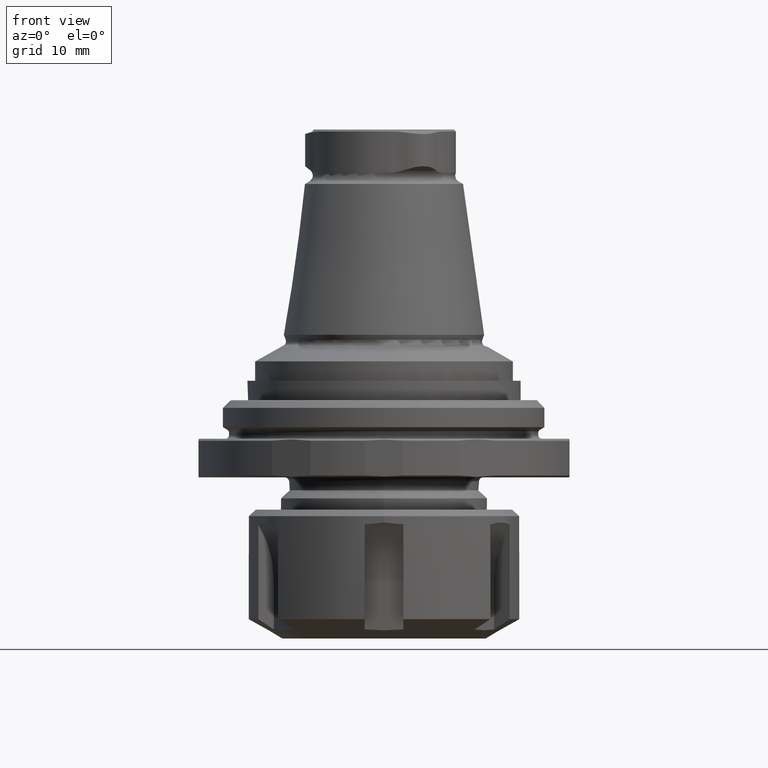
[diagram: clean part render]
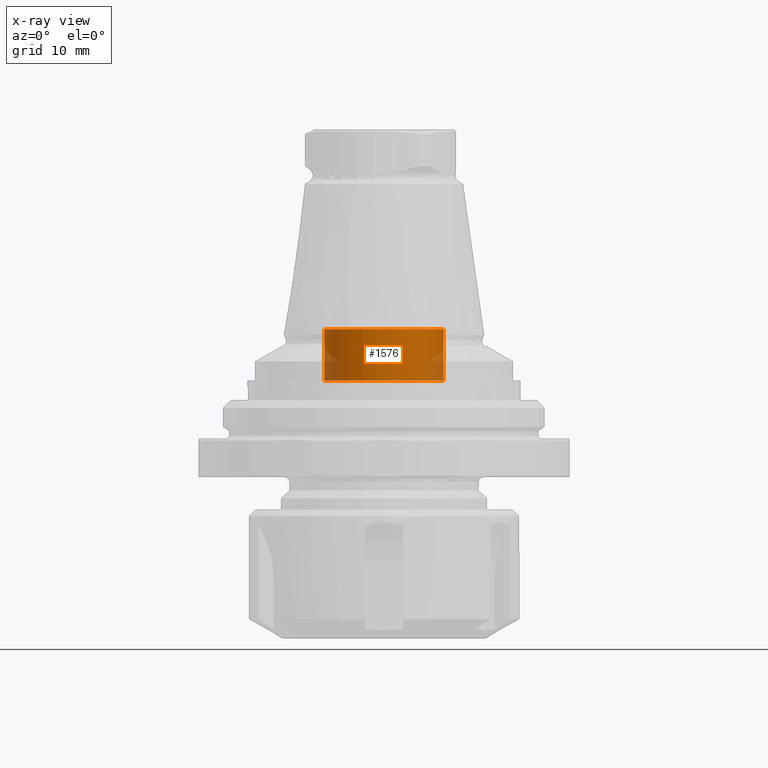
[diagram: x-ray — body ghosted, one internal face saturated and labeled with its STEP entity id]
A machine part, front view, then the same camera in x-ray: the body is ghosted and one INTERNAL B-rep face — a face not visible from any outside direction — is saturated and labeled: STEP entity #1576.
In plain terms, the highlighted cylindrical surface (bore or boss wall) has radius 9.25 mm, axis along (0, 0, -1).
Its self-contained STEP definition (entity closure, byte-faithful):
#284=CYLINDRICAL_SURFACE('',#1780,9.25);
#712=ORIENTED_EDGE('',*,*,#928,.F.);
#713=ORIENTED_EDGE('',*,*,#929,.T.);
#928=EDGE_CURVE('',#1079,#1079,#1166,.T.);
#929=EDGE_CURVE('',#1080,#1080,#1167,.T.);
#1079=VERTEX_POINT('',#2913);
#1080=VERTEX_POINT('',#2916);
#1166=CIRCLE('',#1779,9.25);
#1167=CIRCLE('',#1781,9.25);
#1305=EDGE_LOOP('',(#712));
#1306=EDGE_LOOP('',(#713));
#1445=FACE_BOUND('',#1305,.T.);
#1446=FACE_BOUND('',#1306,.T.);
#1576=ADVANCED_FACE('',(#1445,#1446),#284,.F.);
#1779=AXIS2_PLACEMENT_3D('',#2912,#2217,#2218);
#1780=AXIS2_PLACEMENT_3D('',#2914,#2219,#2220);
#1781=AXIS2_PLACEMENT_3D('',#2915,#2221,#2222);
#2217=DIRECTION('',(0.,0.,-1.));
#2218=DIRECTION('',(-1.,0.,0.));
#2219=DIRECTION('',(0.,0.,-1.));
#2220=DIRECTION('',(-1.,0.,0.));
#2221=DIRECTION('',(2.60563148754756E-18,0.,-1.));
#2222=DIRECTION('',(-1.,0.,-2.60563148754756E-18));
#2912=CARTESIAN_POINT('',(0.,0.,16.));
#2913=CARTESIAN_POINT('',(-9.25,0.,16.));
#2914=CARTESIAN_POINT('',(0.,0.,-34.4021492150513));
#2915=CARTESIAN_POINT('',(0.,0.,8.));
#2916=CARTESIAN_POINT('',(-9.25,0.,8.));